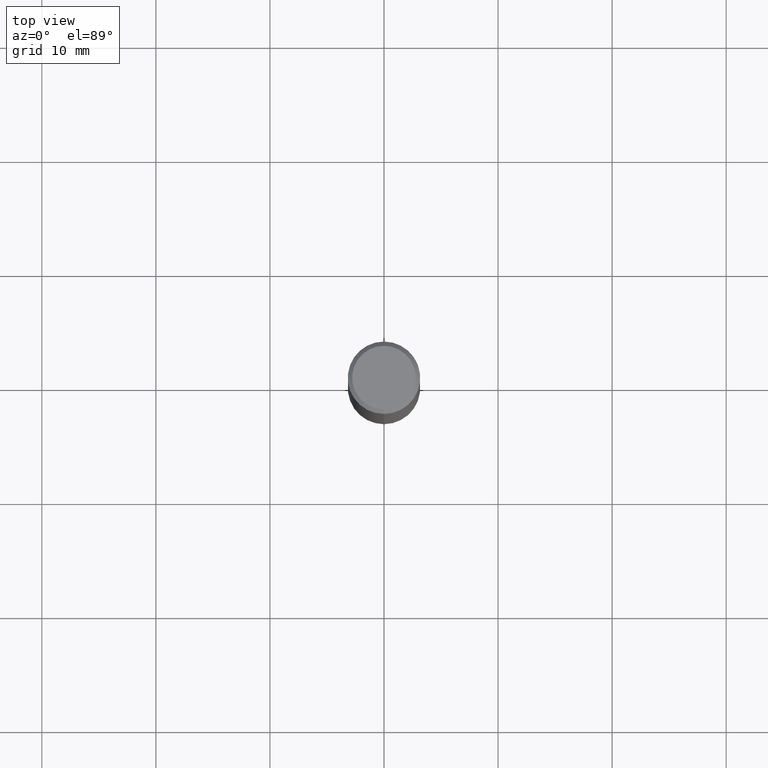
[diagram: clean part render]
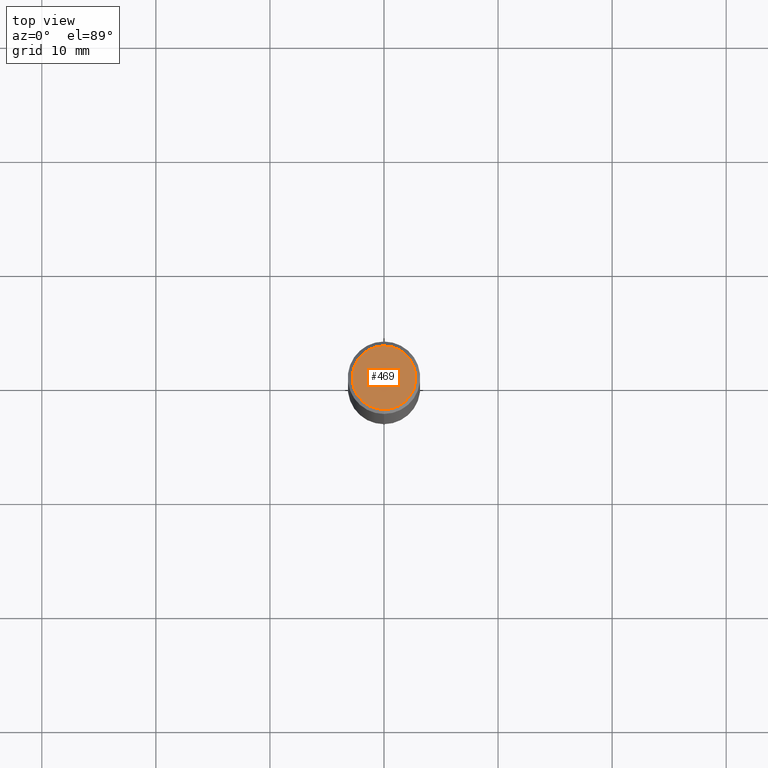
[diagram: same view with one face highlighted and labeled with its STEP entity id]
A machine part, top view. The second image highlights one B-rep face of the part: STEP entity #469.
In plain terms, the highlighted planar face has unit normal (0, -0, -1).
Its self-contained STEP definition (entity closure, byte-faithful):
#33 = VERTEX_POINT ( 'NONE', #191 ) ;
#83 = CARTESIAN_POINT ( 'NONE',  ( -8.061085147381547495E-16, -0.1100000000000000283, -1.622931567555180613E-16 ) ) ;
#96 = CARTESIAN_POINT ( 'NONE',  ( 1.336089907445577974E-44, -1.907649213492703051E-30, -5.463628513805583995E-16 ) ) ;
#103 = FACE_OUTER_BOUND ( 'NONE', #294, .T. ) ;
#139 = CARTESIAN_POINT ( 'NONE',  ( 7.681258945454894762E-16, 0.1100000000000000283, -6.572511203153196119E-16 ) ) ;
#146 = EDGE_CURVE ( 'NONE', #33, #193, #496, .T. ) ;
#160 = DIRECTION ( 'NONE',  ( 2.445425972994914306E-29, -3.491542678409457073E-15, -1.000000000000000000 ) ) ;
#191 = CARTESIAN_POINT ( 'NONE',  ( 8.204981146281365554E-16, 0.1100000000000000283, -9.304325460055988116E-16 ) ) ;
#193 = VERTEX_POINT ( 'NONE', #83 ) ;
#234 = DIRECTION ( 'NONE',  ( -6.982962677686265922E-15, -1.000000000000000000, 3.491542678409456679E-15 ) ) ;
#264 = DIRECTION ( 'NONE',  ( 6.982962677686265922E-15, 1.000000000000000000, -3.491542678409457073E-15 ) ) ;
#280 = EDGE_CURVE ( 'NONE', #193, #33, #411, .T. ) ;
#282 = AXIS2_PLACEMENT_3D ( 'NONE', #96, #381, #234 ) ;
#294 = EDGE_LOOP ( 'NONE', ( #461, #333 ) ) ;
#332 = CARTESIAN_POINT ( 'NONE',  ( 1.336089907445577974E-44, -1.907649213492703051E-30, -5.463628513805583995E-16 ) ) ;
#333 = ORIENTED_EDGE ( 'NONE', *, *, #280, .T. ) ;
#360 = AXIS2_PLACEMENT_3D ( 'NONE', #332, #477, #484 ) ;
#381 = DIRECTION ( 'NONE',  ( -2.445425972994914586E-29, 3.491542678409457073E-15, 1.000000000000000000 ) ) ;
#411 = CIRCLE ( 'NONE', #282, 0.1100000000000000283 ) ;
#437 = AXIS2_PLACEMENT_3D ( 'NONE', #139, #160, #264 ) ;
#461 = ORIENTED_EDGE ( 'NONE', *, *, #146, .T. ) ;
#469 = ADVANCED_FACE ( 'NONE', ( #103 ), #503, .F. ) ;
#477 = DIRECTION ( 'NONE',  ( -2.445425972994914586E-29, 3.491542678409457073E-15, 1.000000000000000000 ) ) ;
#484 = DIRECTION ( 'NONE',  ( -6.982962677686265922E-15, -1.000000000000000000, 3.491542678409456679E-15 ) ) ;
#496 = CIRCLE ( 'NONE', #360, 0.1100000000000000283 ) ;
#503 = PLANE ( 'NONE',  #437 ) ;